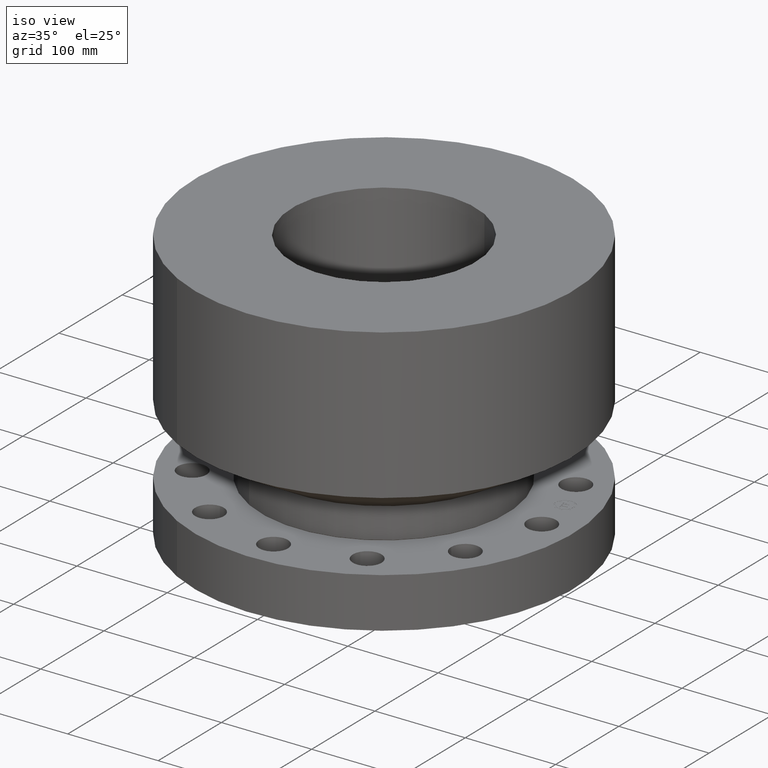
[diagram: clean part render]
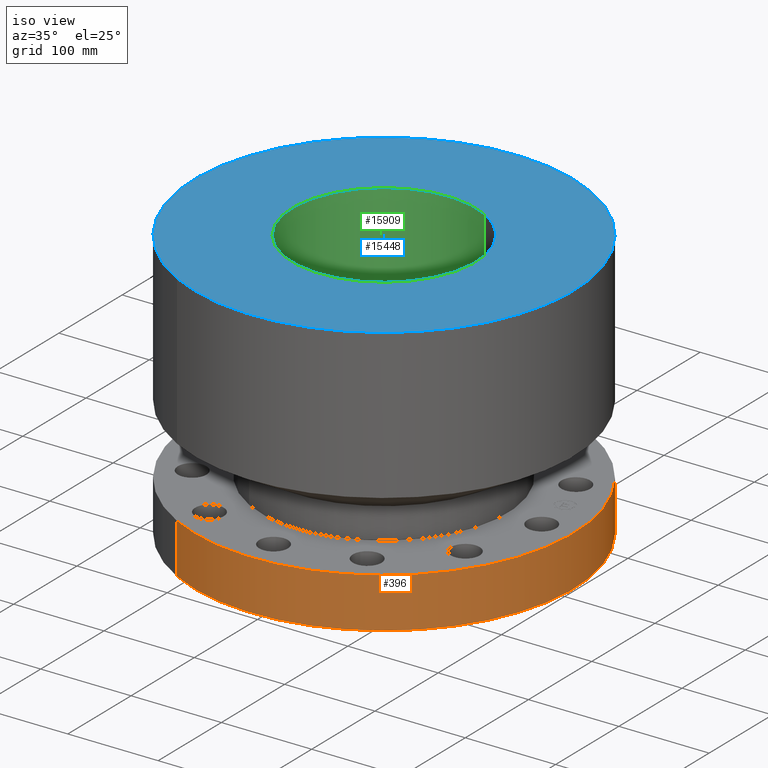
[diagram: same view with three faces highlighted in distinct colors, each labeled with its STEP entity id]
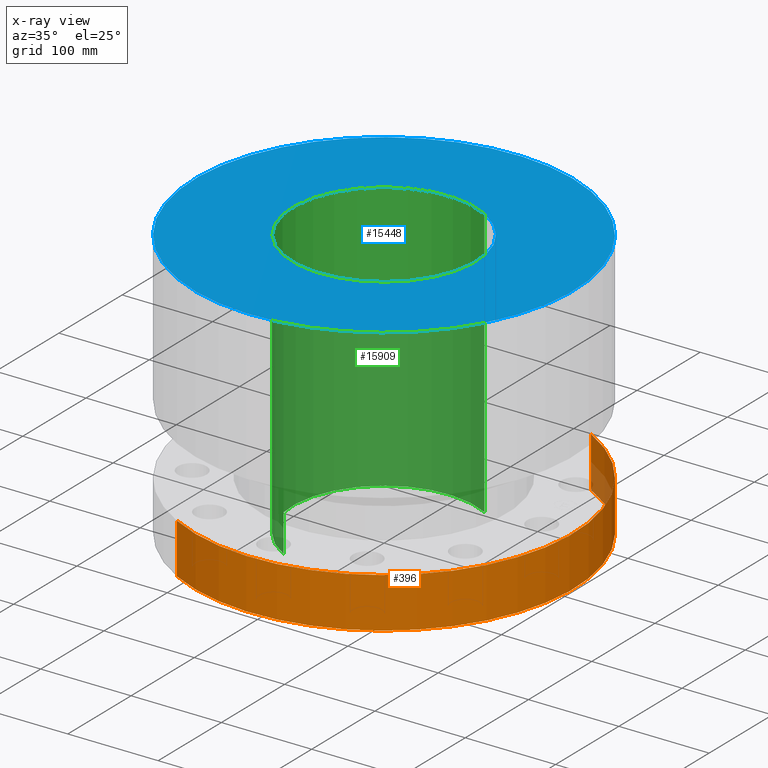
[diagram: x-ray of the same camera — body ghosted, the three highlighted faces saturated]
A machine part, iso view with three faces highlighted in distinct colors.
The next image is the same camera in x-ray (body ghosted, the three faces saturated) — at least one of them is partly hidden behind the body in this view.
Their STEP definitions:

[orange] entity #396 — the highlighted cylindrical surface (partial cylindrical patch) has radius 209.55 mm, axis along (0, 0, -1).
#82=AXIS2_PLACEMENT_3D('Circle Axis2P3D',#80,#81,$) ;
#357=AXIS2_PLACEMENT_3D('Cylinder Axis2P3D',#354,#355,#356) ;
#387=AXIS2_PLACEMENT_3D('Circle Axis2P3D',#385,#386,$) ;
#80=CARTESIAN_POINT('Axis2P3D Location',(0.,0.,2.19000000001)) ;
#84=CARTESIAN_POINT('Vertex',(3.9552606935,7.24005613562,2.19000000001)) ;
#86=CARTESIAN_POINT('Vertex',(-3.9552606935,-7.24005613562,2.19000000001)) ;
#354=CARTESIAN_POINT('Axis2P3D Location',(0.,0.,5.75000000002)) ;
#363=CARTESIAN_POINT('Vertex',(-3.9552606935,-7.24005613562,1.1189649382E-015)) ;
#365=CARTESIAN_POINT('Vertex',(3.9552606935,7.24005613562,1.1189649382E-015)) ;
#368=CARTESIAN_POINT('Line Origine',(-3.9552606935,-7.24005613562,8.48994101199)) ;
#373=CARTESIAN_POINT('Line Origine',(3.9552606935,7.24005613562,8.48994101199)) ;
#385=CARTESIAN_POINT('Axis2P3D Location',(0.,0.,1.1189649382E-015)) ;
#81=DIRECTION('Axis2P3D Direction',(0.,0.,-0.0393700787402)) ;
#355=DIRECTION('Axis2P3D Direction',(0.,0.,-0.0393700787402)) ;
#356=DIRECTION('Axis2P3D XDirection',(-0.0188750212049,-0.0345504945626,0.)) ;
#369=DIRECTION('Vector Direction',(0.,0.,-0.0393700787402)) ;
#374=DIRECTION('Vector Direction',(0.,0.,-0.0393700787402)) ;
#386=DIRECTION('Axis2P3D Direction',(0.,0.,-0.0393700787402)) ;
#370=VECTOR('Line Direction',#369,0.0393700787402) ;
#375=VECTOR('Line Direction',#374,0.0393700787402) ;
#391=ORIENTED_EDGE('',*,*,#389,.F.) ;
#392=ORIENTED_EDGE('',*,*,#377,.T.) ;
#393=ORIENTED_EDGE('',*,*,#88,.T.) ;
#394=ORIENTED_EDGE('',*,*,#372,.F.) ;
#396=ADVANCED_FACE('PartBody',(#395),#358,.T.) ;
#83=CIRCLE('generated circle',#82,8.25000000003) ;
#388=CIRCLE('generated circle',#387,8.25000000003) ;
#358=CYLINDRICAL_SURFACE('generated cylinder',#357,8.25000000003) ;
#88=EDGE_CURVE('',#85,#87,#83,.T.) ;
#372=EDGE_CURVE('',#364,#87,#371,.F.) ;
#377=EDGE_CURVE('',#366,#85,#376,.F.) ;
#389=EDGE_CURVE('',#366,#364,#388,.T.) ;
#390=EDGE_LOOP('',(#391,#392,#393,#394)) ;
#395=FACE_OUTER_BOUND('',#390,.T.) ;
#371=LINE('Line',#368,#370) ;
#376=LINE('Line',#373,#375) ;
#85=VERTEX_POINT('',#84) ;
#87=VERTEX_POINT('',#86) ;
#364=VERTEX_POINT('',#363) ;
#366=VERTEX_POINT('',#365) ;

[blue] entity #15448 — the highlighted planar face has unit normal (0, 0, -1).
#4644=AXIS2_PLACEMENT_3D('Circle Axis2P3D',#4642,#4643,$) ;
#4663=AXIS2_PLACEMENT_3D('Circle Axis2P3D',#4661,#4662,$) ;
#15424=AXIS2_PLACEMENT_3D('Plane Axis2P3D',#15421,#15422,#15423) ;
#15432=AXIS2_PLACEMENT_3D('Circle Axis2P3D',#15430,#15431,$) ;
#15441=AXIS2_PLACEMENT_3D('Circle Axis2P3D',#15439,#15440,$) ;
#4639=CARTESIAN_POINT('Vertex',(3.9552606935,7.24005613562,11.75)) ;
#4642=CARTESIAN_POINT('Axis2P3D Location',(0.,0.,11.75)) ;
#4646=CARTESIAN_POINT('Vertex',(-3.9552606935,-7.24005613562,11.75)) ;
#4661=CARTESIAN_POINT('Axis2P3D Location',(0.,0.,11.75)) ;
#15421=CARTESIAN_POINT('Axis2P3D Location',(0.,8.25000000003,11.75)) ;
#15430=CARTESIAN_POINT('Axis2P3D Location',(0.,0.,11.75)) ;
#15434=CARTESIAN_POINT('Vertex',(-1.91770215442,-3.51033024758,11.75)) ;
#15436=CARTESIAN_POINT('Vertex',(1.91770215442,3.51033024758,11.75)) ;
#15439=CARTESIAN_POINT('Axis2P3D Location',(0.,0.,11.75)) ;
#4643=DIRECTION('Axis2P3D Direction',(0.,0.,-0.0393700787402)) ;
#4662=DIRECTION('Axis2P3D Direction',(0.,0.,-0.0393700787402)) ;
#15422=DIRECTION('Axis2P3D Direction',(0.,0.,-0.0393700787402)) ;
#15423=DIRECTION('Axis2P3D XDirection',(0.0393700787402,0.,0.)) ;
#15431=DIRECTION('Axis2P3D Direction',(0.,0.,-0.0393700787402)) ;
#15440=DIRECTION('Axis2P3D Direction',(0.,0.,-0.0393700787402)) ;
#15427=ORIENTED_EDGE('',*,*,#4648,.F.) ;
#15428=ORIENTED_EDGE('',*,*,#4665,.F.) ;
#15445=ORIENTED_EDGE('',*,*,#15438,.T.) ;
#15446=ORIENTED_EDGE('',*,*,#15443,.T.) ;
#15447=FACE_BOUND('',#15444,.T.) ;
#15448=ADVANCED_FACE('PartBody',(#15429,#15447),#15425,.F.) ;
#4645=CIRCLE('generated circle',#4644,8.25000000003) ;
#4664=CIRCLE('generated circle',#4663,8.25000000003) ;
#15433=CIRCLE('generated circle',#15432,4.00000000002) ;
#15442=CIRCLE('generated circle',#15441,4.00000000002) ;
#4648=EDGE_CURVE('',#4640,#4647,#4645,.T.) ;
#4665=EDGE_CURVE('',#4647,#4640,#4664,.T.) ;
#15438=EDGE_CURVE('',#15435,#15437,#15433,.T.) ;
#15443=EDGE_CURVE('',#15437,#15435,#15442,.T.) ;
#15426=EDGE_LOOP('',(#15427,#15428)) ;
#15444=EDGE_LOOP('',(#15445,#15446)) ;
#15429=FACE_OUTER_BOUND('',#15426,.T.) ;
#15425=PLANE('',#15424) ;
#4640=VERTEX_POINT('',#4639) ;
#4647=VERTEX_POINT('',#4646) ;
#15435=VERTEX_POINT('',#15434) ;
#15437=VERTEX_POINT('',#15436) ;

[green] entity #15909 — the highlighted cylindrical surface (partial cylindrical patch) has radius 101.6 mm, axis along (0, 0, -1).
#15432=AXIS2_PLACEMENT_3D('Circle Axis2P3D',#15430,#15431,$) ;
#15870=AXIS2_PLACEMENT_3D('Cylinder Axis2P3D',#15867,#15868,#15869) ;
#15900=AXIS2_PLACEMENT_3D('Circle Axis2P3D',#15898,#15899,$) ;
#15430=CARTESIAN_POINT('Axis2P3D Location',(0.,0.,11.75)) ;
#15434=CARTESIAN_POINT('Vertex',(-1.91770215442,-3.51033024758,11.75)) ;
#15436=CARTESIAN_POINT('Vertex',(1.91770215442,3.51033024758,11.75)) ;
#15867=CARTESIAN_POINT('Axis2P3D Location',(0.,0.,5.75000000002)) ;
#15876=CARTESIAN_POINT('Vertex',(-1.91770215442,-3.51033024758,0.)) ;
#15878=CARTESIAN_POINT('Vertex',(1.91770215442,3.51033024758,0.)) ;
#15881=CARTESIAN_POINT('Line Origine',(-1.91770215442,-3.51033024758,5.87500000002)) ;
#15886=CARTESIAN_POINT('Line Origine',(1.91770215442,3.51033024758,5.87500000002)) ;
#15898=CARTESIAN_POINT('Axis2P3D Location',(0.,0.,0.)) ;
#15431=DIRECTION('Axis2P3D Direction',(0.,0.,-0.0393700787402)) ;
#15868=DIRECTION('Axis2P3D Direction',(0.,0.,-0.0393700787402)) ;
#15869=DIRECTION('Axis2P3D XDirection',(-0.0188750212049,-0.0345504945626,0.)) ;
#15882=DIRECTION('Vector Direction',(0.,0.,-0.0393700787402)) ;
#15887=DIRECTION('Vector Direction',(0.,0.,-0.0393700787402)) ;
#15899=DIRECTION('Axis2P3D Direction',(0.,0.,-0.0393700787402)) ;
#15883=VECTOR('Line Direction',#15882,0.0393700787402) ;
#15888=VECTOR('Line Direction',#15887,0.0393700787402) ;
#15904=ORIENTED_EDGE('',*,*,#15902,.F.) ;
#15905=ORIENTED_EDGE('',*,*,#15890,.F.) ;
#15906=ORIENTED_EDGE('',*,*,#15438,.F.) ;
#15907=ORIENTED_EDGE('',*,*,#15885,.T.) ;
#15909=ADVANCED_FACE('PartBody',(#15908),#15871,.F.) ;
#15433=CIRCLE('generated circle',#15432,4.00000000002) ;
#15901=CIRCLE('generated circle',#15900,4.00000000002) ;
#15871=CYLINDRICAL_SURFACE('generated cylinder',#15870,4.00000000002) ;
#15438=EDGE_CURVE('',#15435,#15437,#15433,.T.) ;
#15885=EDGE_CURVE('',#15435,#15877,#15884,.T.) ;
#15890=EDGE_CURVE('',#15437,#15879,#15889,.T.) ;
#15902=EDGE_CURVE('',#15879,#15877,#15901,.F.) ;
#15903=EDGE_LOOP('',(#15904,#15905,#15906,#15907)) ;
#15908=FACE_OUTER_BOUND('',#15903,.T.) ;
#15884=LINE('Line',#15881,#15883) ;
#15889=LINE('Line',#15886,#15888) ;
#15435=VERTEX_POINT('',#15434) ;
#15437=VERTEX_POINT('',#15436) ;
#15877=VERTEX_POINT('',#15876) ;
#15879=VERTEX_POINT('',#15878) ;